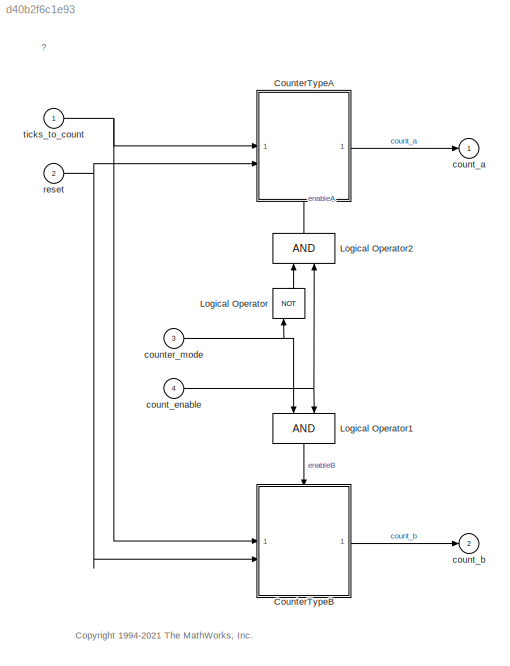
MODEL slx_d40b2f6c1e93
KIND model
CONFIG AbsTol = auto
CONFIG EnableMultiTasking = on
CONFIG FixedStep = T
CONFIG MaxStep = auto
CONFIG MinStep = auto
CONFIG PostLoadFcn = rtwdemo_overrides={'CodeProfilingInstrumentation','CodeProfilingSaveOptions','CodeExecutionProfiling','LaunchReport','PassReuseOutputArgsAs', 'GenerateCodeMetricsReport','ProdHWDeviceType','PortableWordSizes','ProdIntDivRoundTo'};\nrtwconfiguredemo(gcs,'ERT',rtwdemo_overrides{:});\nclear rtwdemo_overrides\n\n% Code coverage settings\nldraPath = '';\nbullseyePath = '';\ntry\n    ldraPath = coder.coverage.L...<+1454ch>
CONFIG RelTol = 1e-3
CONFIG SampleTimeConstraint = Unconstrained
CONFIG SolverName = FixedStepDiscrete
CONFIG StartTime = 0.0
CONFIG StopTime = 10.0
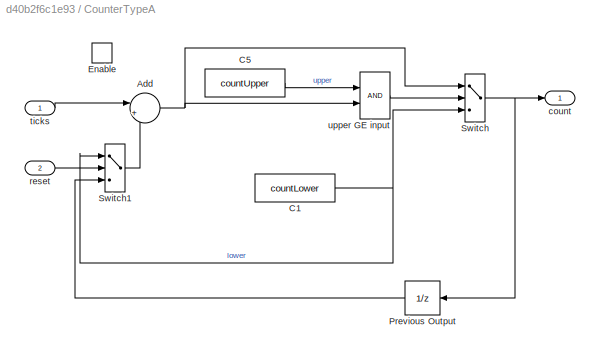
BLOCK [SubSystem] CounterTypeA
  NameLocation = top
  RTWFcnNameOpts = Use subsystem name
  RTWSystemCode = Nonreusable function
BLOCK [Sum] CounterTypeA/Add
  Inputs = |++
  NameLocation = top
  OutDataTypeStr = uint8
BLOCK [Constant] CounterTypeA/C1
  OutDataTypeStr = uint8
  Value = countLower
BLOCK [Constant] CounterTypeA/C5
  OutDataTypeStr = uint8
  Value = countUpper
BLOCK [EnablePort] CounterTypeA/Enable
BLOCK [UnitDelay] CounterTypeA/Previous Output
  HasFrameUpgradeWarning = on
  InitialCondition = 25
  SampleTime = T
BLOCK [Switch] CounterTypeA/Switch
  SaturateOnIntegerOverflow = off
  Threshold = 0.5
BLOCK [Switch] CounterTypeA/Switch1
  Criteria = u2 ~= 0
  SaturateOnIntegerOverflow = off
  Threshold = 0.5
BLOCK [Outport] CounterTypeA/count
  InitialOutput = 25
  VectorParamsAs1DForOutWhenUnconnected = off
BLOCK [Inport] CounterTypeA/reset
  Port = 2
BLOCK [Inport] CounterTypeA/ticks
BLOCK [RelationalOperator] CounterTypeA/upper GE input
  AttributesFormatString = \n
  OutDataTypeStr = boolean
  Priority = 0
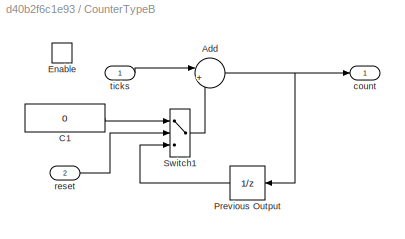
BLOCK [SubSystem] CounterTypeB
  RTWFcnNameOpts = Use subsystem name
  RTWSystemCode = Nonreusable function
BLOCK [Sum] CounterTypeB/Add
  Inputs = |++
  NameLocation = top
  OutDataTypeStr = uint8
BLOCK [Constant] CounterTypeB/C1
  OutDataTypeStr = uint8
  Value = 0
BLOCK [EnablePort] CounterTypeB/Enable
BLOCK [UnitDelay] CounterTypeB/Previous Output
  HasFrameUpgradeWarning = on
  InitialCondition = 15
  SampleTime = T
BLOCK [Switch] CounterTypeB/Switch1
  Criteria = u2 ~= 0
  SaturateOnIntegerOverflow = off
  Threshold = 0.5
BLOCK [Outport] CounterTypeB/count
  InitialOutput = 15
  VectorParamsAs1DForOutWhenUnconnected = off
BLOCK [Inport] CounterTypeB/reset
  Port = 2
BLOCK [Inport] CounterTypeB/ticks
BLOCK [Logic] Logical Operator
  AllPortsSameDT = off
  IconShape = distinctive
  NameLocation = right
  Operator = NOT
  OutDataTypeStr = boolean
BLOCK [Logic] Logical Operator1
  AllPortsSameDT = off
  IconShape = distinctive
  NameLocation = right
  OutDataTypeStr = boolean
BLOCK [Logic] Logical Operator2
  AllPortsSameDT = off
  IconShape = distinctive
  NameLocation = right
  OutDataTypeStr = boolean
BLOCK [Outport] count_a
  VectorParamsAs1DForOutWhenUnconnected = off
BLOCK [Outport] count_b
  Port = 2
  VectorParamsAs1DForOutWhenUnconnected = off
BLOCK [Inport] count_enable
  OutDataTypeStr = boolean
  Port = 4
  PortDimensions = 1
  SampleTime = T
  SamplingMode = Sample based
  SignalType = real
BLOCK [Inport] counter_mode
  OutDataTypeStr = boolean
  Port = 3
  PortDimensions = 1
  SampleTime = T
  SamplingMode = Sample based
  SignalType = real
BLOCK [Inport] reset
  OutDataTypeStr = boolean
  Port = 2
  PortDimensions = 1
  SampleTime = T
  SamplingMode = Sample based
  SignalType = real
BLOCK [Inport] ticks_to_count
  OutDataTypeStr = boolean
  PortDimensions = 1
  SampleTime = T
  SamplingMode = Sample based
  SignalType = real
ANNOTATION (root): <copyright redacted>
ANNOTATION (root): ?
NET CounterTypeA/Add:1 -> CounterTypeA/Switch:1, CounterTypeA/upper GE input:2
NET CounterTypeA/C1:1 -> CounterTypeA/Switch1:1, CounterTypeA/Switch:3
LINE CounterTypeA/C5:1 -> CounterTypeA/upper GE input:1
LINE CounterTypeA/Previous Output:1 -> CounterTypeA/Switch1:3
LINE CounterTypeA/Switch1:1 -> CounterTypeA/Add:2
NET CounterTypeA/Switch:1 -> CounterTypeA/Previous Output:1, CounterTypeA/count:1
LINE CounterTypeA/reset:1 -> CounterTypeA/Switch1:2
LINE CounterTypeA/ticks:1 -> CounterTypeA/Add:1
LINE CounterTypeA/upper GE input:1 -> CounterTypeA/Switch:2
LINE CounterTypeA:1 -> count_a:1
NET CounterTypeB/Add:1 -> CounterTypeB/Previous Output:1, CounterTypeB/count:1
LINE CounterTypeB/C1:1 -> CounterTypeB/Switch1:1
LINE CounterTypeB/Previous Output:1 -> CounterTypeB/Switch1:3
LINE CounterTypeB/Switch1:1 -> CounterTypeB/Add:2
LINE CounterTypeB/reset:1 -> CounterTypeB/Switch1:2
LINE CounterTypeB/ticks:1 -> CounterTypeB/Add:1
LINE CounterTypeB:1 -> count_b:1
LINE Logical Operator1:1 -> CounterTypeB:enable
LINE Logical Operator2:1 -> CounterTypeA:enable
LINE Logical Operator:1 -> Logical Operator2:1
NET count_enable:1 -> Logical Operator1:2, Logical Operator2:2
NET counter_mode:1 -> Logical Operator1:1, Logical Operator:1
NET reset:1 -> CounterTypeA:2, CounterTypeB:2
NET ticks_to_count:1 -> CounterTypeA:1, CounterTypeB:1
note: NET lines group one-source signal fan-out (src -> all destinations, sorted); 1:1 wires keep LINE
